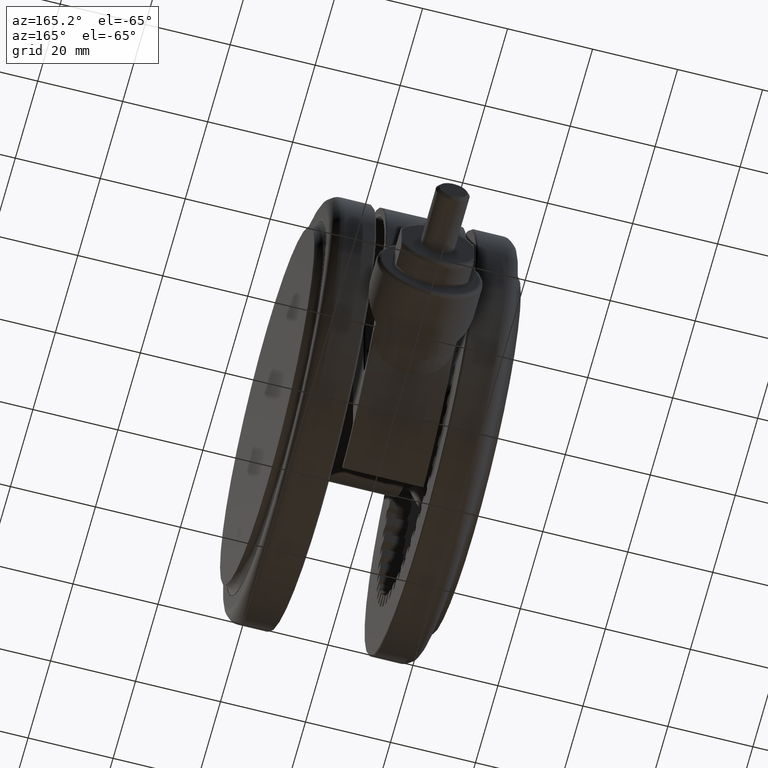
[diagram: clean part render]
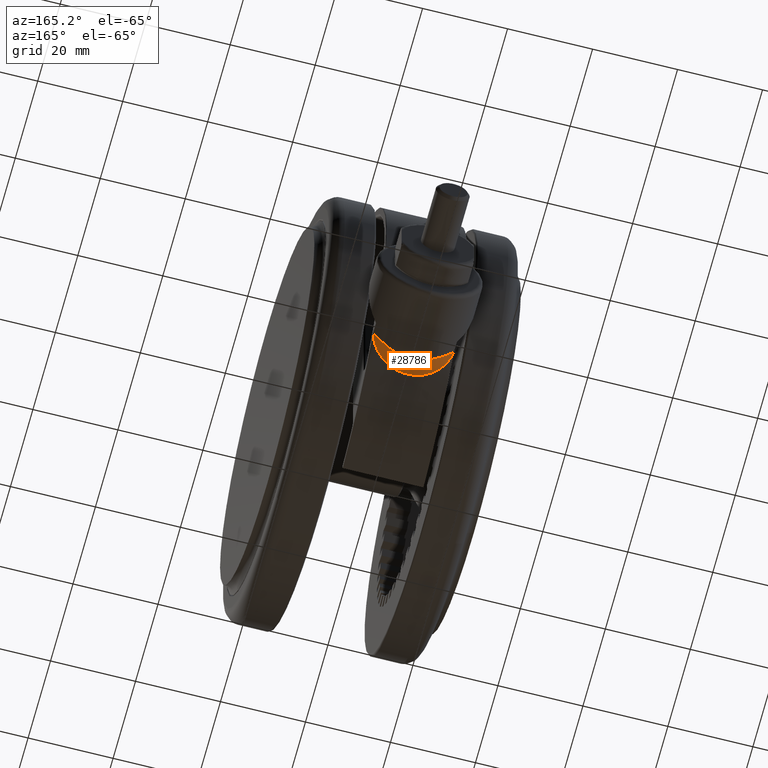
[diagram: same view with one face highlighted and labeled with its STEP entity id]
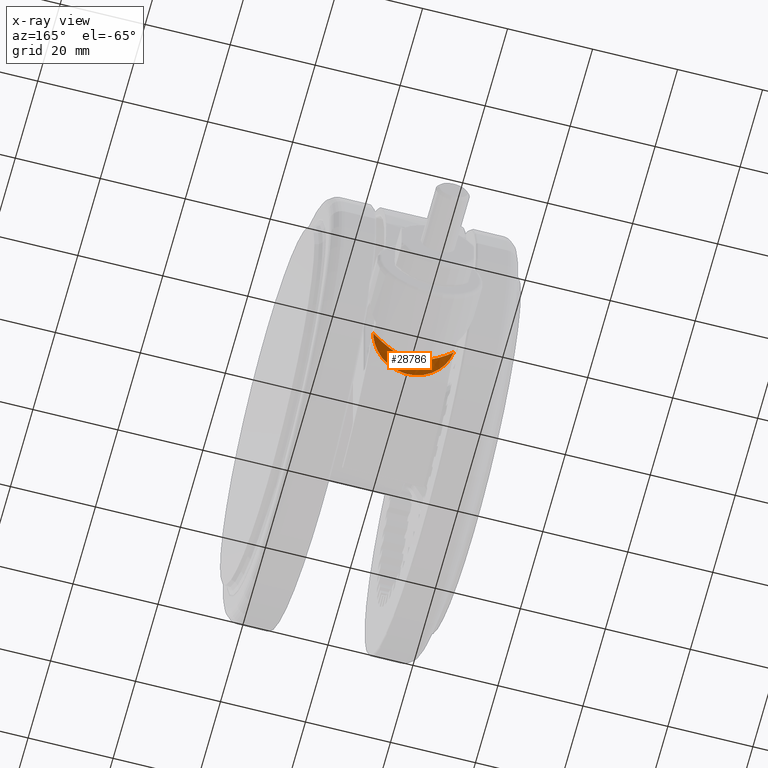
[diagram: x-ray of the same camera — body ghosted, the highlighted face saturated]
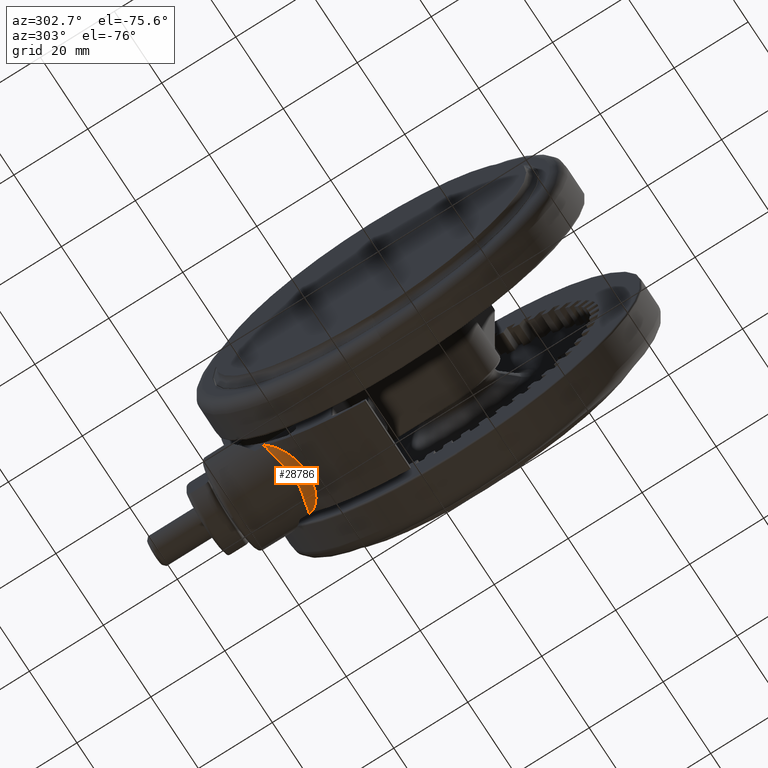
[diagram: same view with one face highlighted and labeled with its STEP entity id]
A machine part, auxiliary view. The second image highlights one B-rep face of the part: STEP entity #28786.
The next image is the same camera in x-ray: the body ghosted, the highlighted face saturated — about 0% of this face is hidden behind the body in this view.
A second angle (auxiliary view) of the same face is appended — the face is thin or edge-on in the first view.
In plain terms, the highlighted face is a freeform B-spline surface patch.
Its self-contained STEP definition (entity closure, byte-faithful):
#28 = CARTESIAN_POINT ( 'NONE',  ( 34.26113102093122400, 37.61833112222797100, -31.44312808462924000 ) ) ;
#40 = CARTESIAN_POINT ( 'NONE',  ( 32.12403840463595400, 38.31509045503450000, -14.80000000000000800 ) ) ;
#146 = CARTESIAN_POINT ( 'NONE',  ( 36.35010992757390400, 34.37936126328516200, -26.31268461614814000 ) ) ;
#250 = CARTESIAN_POINT ( 'NONE',  ( 32.91740461730739800, 38.12528708407590000, -33.12154341255964600 ) ) ;
#362 = CARTESIAN_POINT ( 'NONE',  ( 36.49977962614234900, 36.09398298328415000, -24.74066800862466000 ) ) ;
#419 = EDGE_CURVE ( 'NONE', #23087, #8622, #7089, .T. ) ;
#617 = CARTESIAN_POINT ( 'NONE',  ( 34.31274652645884500, 36.36806705901607700, -32.74709739643780900 ) ) ;
#735 = CARTESIAN_POINT ( 'NONE',  ( 36.89351901911391700, 33.74743635570671800, -29.10060216485628000 ) ) ;
#843 = CARTESIAN_POINT ( 'NONE',  ( 37.67419706141925700, 32.87332735489169300, -23.03472540845762900 ) ) ;
#951 = CARTESIAN_POINT ( 'NONE',  ( 36.99640792677027400, 33.63555748422316300, -19.75708853572382000 ) ) ;
#1056 = CARTESIAN_POINT ( 'NONE',  ( 34.76202998411583400, 35.93902763542729400, -16.23101237620990700 ) ) ;
#1875 = CARTESIAN_POINT ( 'NONE',  ( 32.12403840463595400, 38.31509045503445100, -14.80000000000000800 ) ) ;
#1971 = CARTESIAN_POINT ( 'NONE',  ( 34.16764174720548700, 37.65284456421370900, -17.02881292154144100 ) ) ;
#2076 = CARTESIAN_POINT ( 'NONE',  ( 35.35741100250899600, 37.02084243651844300, -19.07432975578160100 ) ) ;
#2180 = CARTESIAN_POINT ( 'NONE',  ( 36.23715382503068100, 36.33993012262913400, -21.75007544322314200 ) ) ;
#2323 = CARTESIAN_POINT ( 'NONE',  ( 35.89621499842026300, 36.63186333825152700, -28.13799420763969300 ) ) ;
#2417 = CARTESIAN_POINT ( 'NONE',  ( 35.28598797303126100, 37.06669203476781900, -29.67566974754688400 ) ) ;
#2422 = CARTESIAN_POINT ( 'NONE',  ( 37.54350662721949300, 33.02267842505509800, -26.69469926342491600 ) ) ;
#2525 = CARTESIAN_POINT ( 'NONE',  ( 34.07486595088106900, 37.69724034839994400, -31.69919047459953600 ) ) ;
#2535 = CARTESIAN_POINT ( 'NONE',  ( 32.74179714138836800, 37.79715078183986800, -33.27171624132719100 ) ) ;
#2648 = CARTESIAN_POINT ( 'NONE',  ( 36.49970380646760800, 34.22380826817476400, -24.81647473901135800 ) ) ;
#2752 = CARTESIAN_POINT ( 'NONE',  ( 34.38176332875099900, 37.56721705322370000, -31.27728154231266400 ) ) ;
#2860 = CARTESIAN_POINT ( 'NONE',  ( 36.41236935605259400, 36.18148907031789500, -22.58780676138174900 ) ) ;
#3125 = CARTESIAN_POINT ( 'NONE',  ( 34.99755747381399100, 35.71197130703192400, -32.16728140512346800 ) ) ;
#3224 = CARTESIAN_POINT ( 'NONE',  ( 37.10962394447585000, 33.50939683336969200, -28.47004904455612400 ) ) ;
#3337 = CARTESIAN_POINT ( 'NONE',  ( 37.63603152371469200, 32.91700591041627200, -22.66235478231261200 ) ) ;
#3463 = CARTESIAN_POINT ( 'NONE',  ( 36.59406196103343900, 34.07202084390348100, -18.79451486379904100 ) ) ;
#3566 = CARTESIAN_POINT ( 'NONE',  ( 34.49252833873738000, 36.19767272266086200, -15.99937894774339900 ) ) ;
#3874 = ORIENTED_EDGE ( 'NONE', *, *, #17502, .F. ) ;
#4488 = CARTESIAN_POINT ( 'NONE',  ( 34.32331525772909200, 37.58423699330715100, -17.25027979164446300 ) ) ;
#4523 = ORIENTED_EDGE ( 'NONE', *, *, #16413, .F. ) ;
#4599 = CARTESIAN_POINT ( 'NONE',  ( 35.45834896827953700, 36.95153514973075200, -19.30435314969649600 ) ) ;
#4706 = CARTESIAN_POINT ( 'NONE',  ( 36.24425457442555400, 36.33350434493836200, -21.78433459506822000 ) ) ;
#4730 = CARTESIAN_POINT ( 'NONE',  ( 36.41831179279795100, 36.17765676092671600, -25.98673341946097900 ) ) ;
#4831 = CARTESIAN_POINT ( 'NONE',  ( 35.87849894948297400, 36.64592584888563200, -28.19258229271266800 ) ) ;
#4839 = CARTESIAN_POINT ( 'NONE',  ( 32.12403840463595400, 38.31509045503450000, -33.80000000000001100 ) ) ;
#4933 = CARTESIAN_POINT ( 'NONE',  ( 34.95975542745568300, 37.26403204063097300, -30.31519382323877600 ) ) ;
#4939 = CARTESIAN_POINT ( 'NONE',  ( 37.72699225112035000, 32.81271180295755100, -24.91693521020435400 ) ) ;
#5049 = CARTESIAN_POINT ( 'NONE',  ( 33.98338190598304500, 37.73511266649642700, -31.82254527879713300 ) ) ;
#5055 = CARTESIAN_POINT ( 'NONE',  ( 34.08448326327211900, 36.59242965721104200, -31.71590621922821300 ) ) ;
#5153 = CARTESIAN_POINT ( 'NONE',  ( 36.37859898185988800, 34.35105924784113500, -22.29058610459592800 ) ) ;
#5260 = CARTESIAN_POINT ( 'NONE',  ( 35.07094729503325000, 37.20438601109005100, -30.12099419299385500 ) ) ;
#5378 = CARTESIAN_POINT ( 'NONE',  ( 35.79902333183770200, 36.72019316501654600, -20.08093694132109900 ) ) ;
#5524 = CARTESIAN_POINT ( 'NONE',  ( 32.91906115883919900, 37.63746394867963100, -33.55523827998324300 ) ) ;
#5632 = CARTESIAN_POINT ( 'NONE',  ( 35.58246277230635700, 35.12728478890685600, -31.48419502741859300 ) ) ;
#5749 = CARTESIAN_POINT ( 'NONE',  ( 37.23429283232788100, 33.37077632623412200, -28.04583883585296200 ) ) ;
#5861 = CARTESIAN_POINT ( 'NONE',  ( 37.58251479947406200, 32.97813730034763300, -22.22206409547560600 ) ) ;
#5959 = CARTESIAN_POINT ( 'NONE',  ( 36.33370454684151000, 34.34932155627424100, -18.28148012701952400 ) ) ;
#6070 = CARTESIAN_POINT ( 'NONE',  ( 34.38569670367532200, 36.29910101383204300, -15.91452357569802700 ) ) ;
#6813 = CARTESIAN_POINT ( 'NONE',  ( 36.50000001806535700, 36.09362725572349700, -24.29999658556106800 ) ) ;
#6993 = CARTESIAN_POINT ( 'NONE',  ( 34.59973128293498200, 37.45330876579291900, -17.67076234648680000 ) ) ;
#7089 = B_SPLINE_CURVE_WITH_KNOTS ( 'NONE', 3,
 ( #8033, #15471, #5524, #25549, #10550, #28050, #13070, #30525, #15582, #617, #18088, #3125, #20620, #5632, #23118, #8163, #25637, #10663, #28150, #13180, #30629, #15689, #735, #18188, #3224, #20719, #5749, #23229, #8254, #25757, #10768, #28253, #13275, #30749, #15790, #843, #18300, #3337, #20824, #5861, #23332, #8359, #25862, #10883, #28354, #13386, #30854, #15907, #951, #18401, #3463, #20928, #5959, #23438, #8465, #25970, #10986, #28467, #13494, #30963, #16009, #1056, #18509, #3566, #21040, #6070, #23542, #8574, #26071, #11100 ),
 .UNSPECIFIED., .F., .F.,
 ( 4, 2, 1, 1, 1, 2, 2, 2, 2, 1, 1, 2, 2, 2, 2, 1, 1, 2, 2, 2, 2, 1, 2, 2, 2, 1, 1, 2, 2, 2, 2, 1, 1, 2, 2, 2, 2, 1, 1, 2, 2, 4 ),
 ( 0.0000000000000000000, 0.06250000000000850700, 0.09375000000001301700, 0.1093750000000149900, 0.1171875000000159700, 0.1210937500000162200, 0.1250000000000164600, 0.1875000000000103500, 0.2187500000000075500, 0.2343750000000059100, 0.2421875000000051600, 0.2460937500000049700, 0.2500000000000047700, 0.3124999999999984500, 0.3437499999999954500, 0.3593749999999937300, 0.3671874999999930600, 0.3710937499999925600, 0.3749999999999920100, 0.4999999999999773500, 0.5312499999999736900, 0.5468749999999720200, 0.5546874999999712500, 0.5624999999999704700, 0.5937499999999679100, 0.6093749999999668000, 0.6171874999999660300, 0.6210937499999656900, 0.6249999999999654700, 0.6874999999999674700, 0.7187499999999684700, 0.7343749999999692500, 0.7421874999999700200, 0.7460937499999702500, 0.7499999999999703600, 0.8124999999999763500, 0.8437499999999793500, 0.8593749999999811300, 0.8671874999999822400, 0.8710937499999831200, 0.8749999999999840100, 1.000000000000000000 ),
 .UNSPECIFIED. ) ;
#7094 = CARTESIAN_POINT ( 'NONE',  ( 35.48963411192442400, 36.92991092592207300, -19.37658311766340100 ) ) ;
#7198 = CARTESIAN_POINT ( 'NONE',  ( 36.27311717477667900, 36.30730546199100000, -21.92807313298132100 ) ) ;
#7233 = CARTESIAN_POINT ( 'NONE',  ( 36.22840151674525800, 36.34954712188676500, -26.89159094638071300 ) ) ;
#7342 = CARTESIAN_POINT ( 'NONE',  ( 35.79839796583576100, 36.70857239721111400, -28.43094758828678100 ) ) ;
#7348 = CARTESIAN_POINT ( 'NONE',  ( 34.66934688114110200, 36.03122060131904900, -32.47435812443298900 ) ) ;
#7447 = CARTESIAN_POINT ( 'NONE',  ( 34.83757942184013200, 37.33240383776366400, -30.52872611963388000 ) ) ;
#7456 = CARTESIAN_POINT ( 'NONE',  ( 37.57932214696230500, 32.98440942387809800, -21.90580713615894500 ) ) ;
#7538 = CARTESIAN_POINT ( 'NONE',  ( 36.50000001806535700, 36.09362725572349700, -24.29999658556106800 ) ) ;
#7549 = CARTESIAN_POINT ( 'NONE',  ( 33.58563525851830200, 37.88900027988285000, -32.32937614987051200 ) ) ;
#7558 = CARTESIAN_POINT ( 'NONE',  ( 34.78815351317983600, 35.93242280020214700, -30.65684377935735900 ) ) ;
#7664 = CARTESIAN_POINT ( 'NONE',  ( 35.59947566346564700, 35.14474354582536400, -19.52222255057918300 ) ) ;
#7774 = CARTESIAN_POINT ( 'NONE',  ( 35.61951871395514500, 36.84454481585360200, -28.92878430881468800 ) ) ;
#7872 = CARTESIAN_POINT ( 'NONE',  ( 34.66081032718154400, 37.44346102359014600, -17.70811351085132700 ) ) ;
#8033 = CARTESIAN_POINT ( 'NONE',  ( 32.12403840463595400, 38.31509045503450000, -33.80000000000001100 ) ) ;
#8163 = CARTESIAN_POINT ( 'NONE',  ( 35.88639470079879600, 34.81640338780152200, -31.06024271980778200 ) ) ;
#8254 = CARTESIAN_POINT ( 'NONE',  ( 37.27868678258919700, 33.32115974008784300, -27.87941658467048400 ) ) ;
#8300 = FACE_OUTER_BOUND ( 'NONE', #15724, .T. ) ;
#8359 = CARTESIAN_POINT ( 'NONE',  ( 37.45842529910191800, 33.11899733783361900, -21.50681829035518800 ) ) ;
#8465 = CARTESIAN_POINT ( 'NONE',  ( 36.17699705539703100, 34.51413370293398200, -18.00630928014398100 ) ) ;
#8574 = CARTESIAN_POINT ( 'NONE',  ( 33.67350113742060100, 36.97218770086729500, -15.36742604078901000 ) ) ;
#8622 = VERTEX_POINT ( 'NONE', #15775 ) ;
#9285 = CARTESIAN_POINT ( 'NONE',  ( 32.83125385824249100, 38.14565107068398900, -15.40478373741594700 ) ) ;
#9479 = CARTESIAN_POINT ( 'NONE',  ( 34.86014351235378700, 37.31630280300002100, -18.11069175478669300 ) ) ;
#9593 = CARTESIAN_POINT ( 'NONE',  ( 35.61461062774420600, 36.84189128903782500, -19.67647250788600400 ) ) ;
#9709 = CARTESIAN_POINT ( 'NONE',  ( 36.37319197468891500, 36.21531074134630000, -22.50033337221762200 ) ) ;
#9739 = CARTESIAN_POINT ( 'NONE',  ( 36.21568386763834700, 36.36102853541709800, -26.95105854245215600 ) ) ;
#9844 = CARTESIAN_POINT ( 'NONE',  ( 35.63303338329343000, 36.83201838834877200, -28.87917505928111300 ) ) ;
#9852 = CARTESIAN_POINT ( 'NONE',  ( 35.58109633653854300, 35.13063693977344600, -31.50272081236212800 ) ) ;
#9956 = CARTESIAN_POINT ( 'NONE',  ( 34.80619527043756300, 37.34976343444900200, -30.58309302511790400 ) ) ;
#9963 = CARTESIAN_POINT ( 'NONE',  ( 36.61704633647439500, 34.05472666572010400, -18.73239537319346900 ) ) ;
#10068 = CARTESIAN_POINT ( 'NONE',  ( 32.84611438618557600, 38.12962498299407300, -33.14508284543296700 ) ) ;
#10074 = CARTESIAN_POINT ( 'NONE',  ( 35.39922863813033900, 35.34000757902796900, -29.48206776920396900 ) ) ;
#10179 = CARTESIAN_POINT ( 'NONE',  ( 34.34436447098509100, 36.35558612683163200, -17.21275494055692700 ) ) ;
#10298 = CARTESIAN_POINT ( 'NONE',  ( 36.03308066160889900, 36.52274414425384900, -27.71152964968322200 ) ) ;
#10404 = CARTESIAN_POINT ( 'NONE',  ( 32.91846472706544100, 38.12475651041005200, -15.47936315295480700 ) ) ;
#10550 = CARTESIAN_POINT ( 'NONE',  ( 33.73991292827052700, 36.90143508624567700, -33.14026829706006100 ) ) ;
#10663 = CARTESIAN_POINT ( 'NONE',  ( 36.04674763137578700, 34.65014434421857500, -30.81094728902933600 ) ) ;
#10768 = CARTESIAN_POINT ( 'NONE',  ( 37.58501714429105800, 32.97809629345242400, -26.68190859808844100 ) ) ;
#10883 = CARTESIAN_POINT ( 'NONE',  ( 37.35927654058051000, 33.23079222800404900, -21.04918661681717800 ) ) ;
#10986 = CARTESIAN_POINT ( 'NONE',  ( 36.12770660375936400, 34.56572447908637700, -17.92322606596894400 ) ) ;
#11100 = CARTESIAN_POINT ( 'NONE',  ( 32.12403840463595400, 38.31509045503445100, -14.80000000000000800 ) ) ;
#11483 = B_SPLINE_CURVE_WITH_KNOTS ( 'NONE', 3,
 ( #6813, #29296, #4730, #22210, #7233, #24727, #9739, #27223, #12246, #29715, #14768, #32236, #17284, #2323, #19779, #4831, #22306, #7342, #24824, #9844, #27351, #12351, #29818, #14869, #32349, #17384, #2417, #19896, #4933, #22406, #7447, #24933, #9956, #27445, #12473, #29919, #14981, #28, #17498, #2525, #20002, #5049, #22515, #7549, #25044, #10068, #27552, #12575 ),
 .UNSPECIFIED., .F., .F.,
 ( 4, 2, 2, 1, 1, 1, 2, 2, 2, 1, 1, 1, 2, 2, 2, 1, 1, 1, 1, 2, 2, 1, 1, 1, 2, 2, 2, 1, 1, 1, 2, 4 ),
 ( 0.4997022812484689400, 0.6247767109363243600, 0.6267309989001974600, 0.6286852868640705500, 0.6325938627918172900, 0.6404110146473110900, 0.6560453183582983800, 0.6873139257802726200, 0.6892682137441461500, 0.6912225017080195800, 0.6951310776357665400, 0.7029482294912603500, 0.7185825332022481900, 0.7498511406242236400, 0.7518054285880972900, 0.7537597165519709400, 0.7576682924797177900, 0.7654854443352121500, 0.7811197480462001000, 0.8123883554681763400, 0.8143426434320497600, 0.8162969313959231900, 0.8202055073236700400, 0.8280226591791632900, 0.8436569628901502400, 0.8749255703121239200, 0.8788341462398701100, 0.8827427221676161800, 0.8905598740231084300, 0.9061941777340931600, 0.9374627851560622900, 1.000000000000000000 ),
 .UNSPECIFIED. ) ;
#11914 = CARTESIAN_POINT ( 'NONE',  ( 33.51028970744835100, 37.93220448744399000, -16.12263061561724300 ) ) ;
#12014 = CARTESIAN_POINT ( 'NONE',  ( 34.87962305964004600, 37.30564295848373000, -18.14500274588717900 ) ) ;
#12118 = CARTESIAN_POINT ( 'NONE',  ( 35.80168147988111800, 36.70355044283511600, -20.17382168434075500 ) ) ;
#12213 = CARTESIAN_POINT ( 'NONE',  ( 36.47957591454797200, 36.11417289996642000, -23.46611478613859000 ) ) ;
#12246 = CARTESIAN_POINT ( 'NONE',  ( 36.15805373235137000, 36.41258714090911800, -27.20685049241592100 ) ) ;
#12351 = CARTESIAN_POINT ( 'NONE',  ( 35.43992505489750800, 36.96565723448504300, -29.33769371529816500 ) ) ;
#12358 = CARTESIAN_POINT ( 'NONE',  ( 36.36043241358020600, 34.32274062846539700, -30.29595018659630800 ) ) ;
#12473 = CARTESIAN_POINT ( 'NONE',  ( 34.66743719506526800, 37.42394761068105400, -30.81731373420998600 ) ) ;
#12480 = CARTESIAN_POINT ( 'NONE',  ( 35.01279839000770300, 35.70650422569295300, -16.39583582207231800 ) ) ;
#12575 = CARTESIAN_POINT ( 'NONE',  ( 32.12403840463595400, 38.31509045503450000, -33.80000000000001100 ) ) ;
#12585 = CARTESIAN_POINT ( 'NONE',  ( 35.89556917485985100, 34.84482114249387800, -28.20029443363994300 ) ) ;
#12699 = CARTESIAN_POINT ( 'NONE',  ( 32.74271661649851200, 37.79637987802923500, -15.32907005831086700 ) ) ;
#12810 = CARTESIAN_POINT ( 'NONE',  ( 36.32129708903960400, 36.26548179499374700, -26.44982729102327600 ) ) ;
#13070 = CARTESIAN_POINT ( 'NONE',  ( 34.18871064047896600, 36.48476154391279600, -32.83915778884531300 ) ) ;
#13180 = CARTESIAN_POINT ( 'NONE',  ( 36.09326724600048700, 34.60168511526683900, -30.73579949498948200 ) ) ;
#13275 = CARTESIAN_POINT ( 'NONE',  ( 37.72742056007388100, 32.81221933876854300, -24.00770164411129000 ) ) ;
#13386 = CARTESIAN_POINT ( 'NONE',  ( 37.31689872523966800, 33.27835986008985000, -20.87483004962699000 ) ) ;
#13494 = CARTESIAN_POINT ( 'NONE',  ( 35.59718382081841500, 35.11429071728033300, -17.12017626975689000 ) ) ;
#14428 = CARTESIAN_POINT ( 'NONE',  ( 34.12394766109386500, 37.67156191374105800, -16.96817061705037200 ) ) ;
#14518 = CARTESIAN_POINT ( 'NONE',  ( 34.94685685018090000, 37.26844631393411300, -18.26496723256881800 ) ) ;
#14625 = CARTESIAN_POINT ( 'NONE',  ( 36.06573623713082800, 36.49300108588882100, -21.00542363732815000 ) ) ;
#14739 = CARTESIAN_POINT ( 'NONE',  ( 36.50000001806535700, 36.09362725572349700, -24.29999658556106800 ) ) ;
#14768 = CARTESIAN_POINT ( 'NONE',  ( 36.03861309029161200, 36.51591747484521700, -27.67165940520181900 ) ) ;
#14869 = CARTESIAN_POINT ( 'NONE',  ( 35.42372825137858400, 36.97652211680770800, -29.37431014495594900 ) ) ;
#14880 = CARTESIAN_POINT ( 'NONE',  ( 36.98341913370889200, 33.64985470850115200, -28.88246211112868900 ) ) ;
#14981 = CARTESIAN_POINT ( 'NONE',  ( 34.39650944352334200, 37.55682584861622100, -31.24363407806773200 ) ) ;
#14989 = CARTESIAN_POINT ( 'NONE',  ( 32.92274747709100100, 37.64543887355674900, -15.00357939401489700 ) ) ;
#15094 = CARTESIAN_POINT ( 'NONE',  ( 36.26257030158093600, 34.47001485367971400, -26.79698749842321700 ) ) ;
#15212 = CARTESIAN_POINT ( 'NONE',  ( 32.12403840463595400, 38.31509045503450000, -33.80000000000001100 ) ) ;
#15219 = CARTESIAN_POINT ( 'NONE',  ( 32.12403840463595400, 38.31509045503450000, -33.80000000000001100 ) ) ;
#15316 = CARTESIAN_POINT ( 'NONE',  ( 36.47679525740325300, 36.11673357199304500, -25.17381985722370500 ) ) ;
#15471 = CARTESIAN_POINT ( 'NONE',  ( 32.53170146418551700, 37.97329865379914100, -33.69623421304554300 ) ) ;
#15582 = CARTESIAN_POINT ( 'NONE',  ( 34.29288990463558000, 36.38679042535780900, -32.76208389114430700 ) ) ;
#15689 = CARTESIAN_POINT ( 'NONE',  ( 36.59771754745315800, 34.06892858752119900, -29.82475463302119300 ) ) ;
#15724 = EDGE_LOOP ( 'NONE', ( #20985, #3874, #4523 ) ) ;
#15775 = CARTESIAN_POINT ( 'NONE',  ( 32.12403840463595400, 38.31509045503445100, -14.80000000000000800 ) ) ;
#15790 = CARTESIAN_POINT ( 'NONE',  ( 37.69123459779177700, 32.85378250809321100, -23.25875986143018500 ) ) ;
#15907 = CARTESIAN_POINT ( 'NONE',  ( 37.16268891530255300, 33.45110870720792200, -20.26802367117650400 ) ) ;
#16009 = CARTESIAN_POINT ( 'NONE',  ( 35.00197835032136600, 35.70589945023003500, -16.45673910144654800 ) ) ;
#16413 = EDGE_CURVE ( 'NONE', #8622, #23489, #26503, .T. ) ;
#16927 = CARTESIAN_POINT ( 'NONE',  ( 34.14210928010621900, 37.66381044730152900, -16.99329829154412200 ) ) ;
#17034 = CARTESIAN_POINT ( 'NONE',  ( 35.21677137472134000, 37.11142425517876100, -18.77561857905072500 ) ) ;
#17151 = CARTESIAN_POINT ( 'NONE',  ( 36.23549645471085500, 36.34142888843050700, -21.74213810170258700 ) ) ;
#17284 = CARTESIAN_POINT ( 'NONE',  ( 35.89892968038697100, 36.62970362570370500, -28.12958129000052300 ) ) ;
#17288 = CARTESIAN_POINT ( 'NONE',  ( 32.92166222279080000, 37.64634876964220200, -33.59697433641422000 ) ) ;
#17384 = CARTESIAN_POINT ( 'NONE',  ( 35.36717482719096500, 37.01403410382445000, -29.50025706937671200 ) ) ;
#17392 = CARTESIAN_POINT ( 'NONE',  ( 37.43618242095029600, 33.14478191163090100, -27.26398927128392200 ) ) ;
#17498 = CARTESIAN_POINT ( 'NONE',  ( 34.09237753910360900, 37.68988539548031000, -31.67529203615310300 ) ) ;
#17502 = EDGE_CURVE ( 'NONE', #23489, #23087, #11483, .T. ) ;
#17505 = CARTESIAN_POINT ( 'NONE',  ( 32.12403840463591100, 38.31509045503447200, -33.79999999999999700 ) ) ;
#17612 = CARTESIAN_POINT ( 'NONE',  ( 36.46856530793935700, 34.25636351355731800, -25.32458838649882800 ) ) ;
#17719 = CARTESIAN_POINT ( 'NONE',  ( 33.56664285894665100, 37.91273334638410100, -32.39834640830759600 ) ) ;
#17829 = CARTESIAN_POINT ( 'NONE',  ( 36.50043599079795300, 36.09292643029620300, -23.43755230665498200 ) ) ;
#18088 = CARTESIAN_POINT ( 'NONE',  ( 34.67847468078797800, 36.02259843665415700, -32.46738158164354400 ) ) ;
#18188 = CARTESIAN_POINT ( 'NONE',  ( 36.98444995232171100, 33.64767337381374500, -28.85244482626061200 ) ) ;
#18300 = CARTESIAN_POINT ( 'NONE',  ( 37.65198884829325000, 32.89875199347876800, -22.81123102367819700 ) ) ;
#18401 = CARTESIAN_POINT ( 'NONE',  ( 36.70046858691914300, 33.95727959054109800, -19.03021689853185800 ) ) ;
#18509 = CARTESIAN_POINT ( 'NONE',  ( 34.63963226216026900, 36.05716634665797900, -16.12144361543154500 ) ) ;
#19438 = CARTESIAN_POINT ( 'NONE',  ( 34.21907164050809100, 37.63051104484094400, -17.10103320994397100 ) ) ;
#19531 = CARTESIAN_POINT ( 'NONE',  ( 35.45137718920965100, 36.95633427270468700, -19.28839850064429500 ) ) ;
#19637 = CARTESIAN_POINT ( 'NONE',  ( 36.24000156349689700, 36.33735371592847900, -21.76378023264734600 ) ) ;
#19779 = CARTESIAN_POINT ( 'NONE',  ( 35.88917128239229700, 36.63746066680122500, -28.15975867697111900 ) ) ;
#19896 = CARTESIAN_POINT ( 'NONE',  ( 35.11666137713722700, 37.17249885011512600, -30.02322095952151000 ) ) ;
#19904 = CARTESIAN_POINT ( 'NONE',  ( 37.68892080385724300, 32.85661925507940100, -25.52311673937988000 ) ) ;
#20002 = CARTESIAN_POINT ( 'NONE',  ( 34.03837811871009200, 37.71242924569736500, -31.74861788209258500 ) ) ;
#20007 = CARTESIAN_POINT ( 'NONE',  ( 33.31013225459416600, 37.29730577675149300, -32.69042207014996400 ) ) ;
#20123 = CARTESIAN_POINT ( 'NONE',  ( 36.50058598413022500, 34.22286650298857300, -23.28920437260382000 ) ) ;
#20228 = CARTESIAN_POINT ( 'NONE',  ( 34.62683780853610200, 37.44778576250875100, -30.89698155184169800 ) ) ;
#20344 = CARTESIAN_POINT ( 'NONE',  ( 36.05812889911180000, 36.50181562763594900, -20.89411594885433800 ) ) ;
#20620 = CARTESIAN_POINT ( 'NONE',  ( 35.44067592291738600, 35.27041211934644600, -31.66187379056688300 ) ) ;
#20719 = CARTESIAN_POINT ( 'NONE',  ( 37.16940470234046500, 33.44309982805506100, -28.27631121025110200 ) ) ;
#20824 = CARTESIAN_POINT ( 'NONE',  ( 37.62730254867106100, 32.92698418947752300, -22.58655718072868600 ) ) ;
#20928 = CARTESIAN_POINT ( 'NONE',  ( 36.42248523555941400, 34.25506623937974400, -18.45084457819656300 ) ) ;
#20985 = ORIENTED_EDGE ( 'NONE', *, *, #419, .F. ) ;
#21040 = CARTESIAN_POINT ( 'NONE',  ( 34.42855383075278300, 36.25845492202457600, -15.94830099442417600 ) ) ;
#21965 = CARTESIAN_POINT ( 'NONE',  ( 34.41477385333261900, 37.54181864149825300, -17.38658844214839800 ) ) ;
#22075 = CARTESIAN_POINT ( 'NONE',  ( 35.47091343021695300, 36.94286382234541600, -19.33327133736010600 ) ) ;
#22088 =( BOUNDED_SURFACE ( )  B_SPLINE_SURFACE ( 2, 3, ( 
 ( #4839, #17288, #22316, #7348, #24830, #9852, #27355, #12358, #29826, #14880, #32356, #17392, #2422, #19904, #4939, #22414, #7456, #24942, #9963, #27452, #12480, #29927, #14989, #40 ),
 ( #17505, #2535, #20007, #5055, #22524, #7558, #25054, #10074, #27560, #12585, #30042, #15094, #146, #17612, #2648, #20123, #5153, #22637, #7664, #25164, #10179, #27679, #12699, #30140 ),
 ( #15212, #250, #17719, #2752, #20228, #5260, #22745, #7774, #25274, #10298, #27797, #12810, #30254, #15316, #362, #17829, #2860, #20344, #5378, #22857, #7872, #25395, #10404, #27900 ) ),
 .UNSPECIFIED., .F., .F., .F. ) 
 B_SPLINE_SURFACE_WITH_KNOTS ( ( 3, 3 ),
 ( 4, 2, 2, 2, 2, 2, 2, 2, 2, 2, 2, 4 ),
 ( 0.0000000000000000000, 1.000000000000000000 ),
 ( 0.0000000000000000000, 0.002910886117482075000, 0.004366329176223114600, 0.005821772234964149900, 0.007277215293705189600, 0.008732658352446231000, 0.01018810141118726100, 0.01164354446992830000, 0.01455443058741037900, 0.01746531670489245200, 0.02037620282237455000, 0.02328708893985660000 ),
 .UNSPECIFIED. ) 
 GEOMETRIC_REPRESENTATION_ITEM ( )  RATIONAL_B_SPLINE_SURFACE ( (
 ( 1.000000000000000000, 1.000000000000000000, 1.000000000000000000, 1.000000000000000000, 1.000000000000000000, 1.000000000000000000, 1.000000000000000000, 1.000000000000000000, 1.000000000000000000, 1.000000000000000000, 1.000000000000000000, 1.000000000000000000, 1.000000000000000000, 1.000000000000000000, 1.000000000000000000, 1.000000000000000000, 1.000000000000000000, 1.000000000000000000, 1.000000000000000000, 1.000000000000000000, 1.000000000000000000, 1.000000000000000000, 1.000000000000000000, 1.000000000000000000),
 ( 0.8418916422966860000, 0.8570734120095450100, 0.8703353177241299800, 0.8876393394011290500, 0.8929770659336349100, 0.9028314442063309900, 0.9073492672212120100, 0.9154090577498089600, 0.9189779975322630600, 0.9252072574556999800, 0.9278809530471759900, 0.9322041489067389700, 0.9338395159535939300, 0.9360492422161689200, 0.9366233347750039200, 0.9366383695769610100, 0.9344183675432130600, 0.9257898320593279700, 0.9195433855217219900, 0.9033177914612959800, 0.8935623208423110200, 0.8704889904661880000, 0.8570972105120691100, 0.8418916422966860000),
 ( 1.000000000000000000, 1.000000000000000000, 1.000000000000000000, 1.000000000000000000, 1.000000000000000000, 1.000000000000000000, 1.000000000000000000, 1.000000000000000000, 1.000000000000000000, 1.000000000000000000, 1.000000000000000000, 1.000000000000000000, 1.000000000000000000, 1.000000000000000000, 1.000000000000000000, 1.000000000000000000, 1.000000000000000000, 1.000000000000000000, 1.000000000000000000, 1.000000000000000000, 1.000000000000000000, 1.000000000000000000, 1.000000000000000000, 1.000000000000000000) ) ) 
 REPRESENTATION_ITEM ( '' )  SURFACE ( )  );
#22181 = CARTESIAN_POINT ( 'NONE',  ( 36.25404827326705300, 36.32462915272095200, -21.83227477241775800 ) ) ;
#22210 = CARTESIAN_POINT ( 'NONE',  ( 36.23063194157538900, 36.34753037272382400, -26.88105403869915100 ) ) ;
#22306 = CARTESIAN_POINT ( 'NONE',  ( 35.85283871980131200, 36.66616226523518700, -28.27040462708760800 ) ) ;
#22316 = CARTESIAN_POINT ( 'NONE',  ( 33.66408607962280500, 36.98079492340534800, -33.24321432607195000 ) ) ;
#22406 = CARTESIAN_POINT ( 'NONE',  ( 34.84321218121825600, 37.32926548909538400, -30.51891792850822000 ) ) ;
#22414 = CARTESIAN_POINT ( 'NONE',  ( 37.72782762531899400, 32.81175130032534800, -23.09257323305728000 ) ) ;
#22515 = CARTESIAN_POINT ( 'NONE',  ( 33.85321846210314300, 37.78734117233130300, -31.99353385111925600 ) ) ;
#22524 = CARTESIAN_POINT ( 'NONE',  ( 34.32820012965455400, 36.36630205246957100, -31.37659994023209000 ) ) ;
#22637 = CARTESIAN_POINT ( 'NONE',  ( 35.92461712610433700, 34.81611768653280600, -20.39279422286825700 ) ) ;
#22745 = CARTESIAN_POINT ( 'NONE',  ( 35.27000021431069900, 37.08024586471220400, -29.72456952125417800 ) ) ;
#22857 = CARTESIAN_POINT ( 'NONE',  ( 35.09520465022585300, 37.19832824345365200, -18.47643764968856000 ) ) ;
#23087 = VERTEX_POINT ( 'NONE', #15219 ) ;
#23118 = CARTESIAN_POINT ( 'NONE',  ( 35.78652116575482700, 34.91896835888577800, -31.20386254525206800 ) ) ;
#23229 = CARTESIAN_POINT ( 'NONE',  ( 37.26106686952010700, 33.34086187254300200, -27.94611248231610600 ) ) ;
#23332 = CARTESIAN_POINT ( 'NONE',  ( 37.53810011567075800, 33.02873721342054800, -21.93390471861958300 ) ) ;
#23438 = CARTESIAN_POINT ( 'NONE',  ( 36.22481259833311600, 34.46399058006326800, -18.08821197765529500 ) ) ;
#23489 = VERTEX_POINT ( 'NONE', #7538 ) ;
#23542 = CARTESIAN_POINT ( 'NONE',  ( 34.36343508477814600, 36.32017561434545900, -15.89721210537101500 ) ) ;
#24471 = CARTESIAN_POINT ( 'NONE',  ( 34.72578075680198100, 37.38940461920597600, -17.87562727322982100 ) ) ;
#24587 = CARTESIAN_POINT ( 'NONE',  ( 35.53244071496696000, 36.90006616351703900, -19.47717980003957200 ) ) ;
#24697 = CARTESIAN_POINT ( 'NONE',  ( 36.30919287766943900, 36.27436485535036300, -22.11932611970626900 ) ) ;
#24727 = CARTESIAN_POINT ( 'NONE',  ( 36.22334612407755800, 36.35411392151770100, -26.91533111079621700 ) ) ;
#24824 = CARTESIAN_POINT ( 'NONE',  ( 35.74607930704799200, 36.74824502337941100, -28.57682106156307700 ) ) ;
#24830 = CARTESIAN_POINT ( 'NONE',  ( 34.98648690088710800, 35.72284706792375200, -32.17832863730605900 ) ) ;
#24933 = CARTESIAN_POINT ( 'NONE',  ( 34.82507840063518500, 37.33933783960262800, -30.55042673888779000 ) ) ;
#24942 = CARTESIAN_POINT ( 'NONE',  ( 37.01941153229210400, 33.61160347067649900, -19.70481856508210000 ) ) ;
#25044 = CARTESIAN_POINT ( 'NONE',  ( 33.34418376832847000, 37.97134025072432500, -32.60638533134118000 ) ) ;
#25054 = CARTESIAN_POINT ( 'NONE',  ( 35.00522410131982600, 35.72389488592769900, -30.27522735907798400 ) ) ;
#25164 = CARTESIAN_POINT ( 'NONE',  ( 34.80540810995822900, 35.91864659481292000, -17.92145593502596100 ) ) ;
#25274 = CARTESIAN_POINT ( 'NONE',  ( 35.77125076591605100, 36.73149997768064900, -28.52743659507456500 ) ) ;
#25395 = CARTESIAN_POINT ( 'NONE',  ( 33.57425050388344800, 37.90511995948760000, -16.21052711192820400 ) ) ;
#25549 = CARTESIAN_POINT ( 'NONE',  ( 33.47112494289950000, 37.14491371740820100, -33.28789916122808300 ) ) ;
#25637 = CARTESIAN_POINT ( 'NONE',  ( 35.99919553597424500, 34.69959086388171700, -30.88664248415763700 ) ) ;
#25757 = CARTESIAN_POINT ( 'NONE',  ( 37.28692987240628300, 33.31193546800764700, -27.84773115021839700 ) ) ;
#25862 = CARTESIAN_POINT ( 'NONE',  ( 37.41532364989380700, 33.16771651198349200, -21.29456323547790900 ) ) ;
#25970 = CARTESIAN_POINT ( 'NONE',  ( 36.14486403006561200, 34.54778351006444100, -17.95191337277179500 ) ) ;
#26071 = CARTESIAN_POINT ( 'NONE',  ( 32.93632475846038700, 37.63405544465285100, -15.00704004672171600 ) ) ;
#26503 = B_SPLINE_CURVE_WITH_KNOTS ( 'NONE', 3,
 ( #1875, #9285, #11914, #29362, #14428, #31877, #16927, #1971, #19438, #4488, #21965, #6993, #24471, #9479, #26978, #12014, #29468, #14518, #31987, #17034, #2076, #19531, #4599, #22075, #7094, #24587, #9593, #27085, #12118, #29578, #14625, #32103, #17151, #2180, #19637, #4706, #22181, #7198, #24697, #9709, #27193, #12213, #29681, #14739 ),
 .UNSPECIFIED., .F., .F.,
 ( 4, 2, 2, 1, 1, 1, 1, 2, 2, 2, 1, 1, 1, 1, 2, 2, 1, 1, 1, 2, 2, 2, 2, 1, 1, 1, 1, 1, 2, 4 ),
 ( 0.0000000000000000000, 0.1249255703121935200, 0.1259015513302573800, 0.1268775323483212800, 0.1288294943844486600, 0.1327334184567026700, 0.1405412666012101100, 0.1561569628902249600, 0.1873883554682549700, 0.1893403175043815200, 0.1912922795405080600, 0.1951962036127611900, 0.2030040517572678500, 0.2186197480462811500, 0.2498511406243077400, 0.2518031026604347100, 0.2537550646965616200, 0.2576589887688153200, 0.2654668369133222900, 0.2810825332023360600, 0.3123139257803631600, 0.3747767109364176800, 0.3757526919544809100, 0.3767286729725440900, 0.3786806350086699400, 0.3825845590809213700, 0.3903924072254242300, 0.4060081035144303400, 0.4372394960924431700, 0.4997022812484689400 ),
 .UNSPECIFIED. ) ;
#26978 = CARTESIAN_POINT ( 'NONE',  ( 34.86605375876300200, 37.31307439966559500, -18.12107899146945300 ) ) ;
#27085 = CARTESIAN_POINT ( 'NONE',  ( 35.67933347742766900, 36.79462365433719400, -19.84388870938642700 ) ) ;
#27193 = CARTESIAN_POINT ( 'NONE',  ( 36.41440691819870100, 36.17639652810371600, -22.82392555790842800 ) ) ;
#27223 = CARTESIAN_POINT ( 'NONE',  ( 36.19724345810797000, 36.37761353568657800, -27.03524008814665100 ) ) ;
#27351 = CARTESIAN_POINT ( 'NONE',  ( 35.54647348911002100, 36.89377144850543300, -29.09491575076123500 ) ) ;
#27355 = CARTESIAN_POINT ( 'NONE',  ( 35.85864279916349800, 34.84665416009755000, -31.12207594690960400 ) ) ;
#27445 = CARTESIAN_POINT ( 'NONE',  ( 34.76120495777553300, 37.37426196703922400, -30.66011556383605800 ) ) ;
#27452 = CARTESIAN_POINT ( 'NONE',  ( 35.60764669468360200, 35.10880213779745400, -17.06325723051177700 ) ) ;
#27552 = CARTESIAN_POINT ( 'NONE',  ( 32.49383438787705100, 38.22662119195638300, -33.48376455055466000 ) ) ;
#27560 = CARTESIAN_POINT ( 'NONE',  ( 35.57831253036212600, 35.16264297112025600, -29.06800148836990200 ) ) ;
#27679 = CARTESIAN_POINT ( 'NONE',  ( 33.31827743322988100, 37.29003772161654200, -15.91850003289971700 ) ) ;
#27797 = CARTESIAN_POINT ( 'NONE',  ( 36.14376018732224300, 36.42614527361010300, -27.29419569340601700 ) ) ;
#27900 = CARTESIAN_POINT ( 'NONE',  ( 32.12403840463595400, 38.31509045503450000, -14.80000000000000800 ) ) ;
#28050 = CARTESIAN_POINT ( 'NONE',  ( 34.04114394597100800, 36.62272535006732000, -32.94360000548079600 ) ) ;
#28150 = CARTESIAN_POINT ( 'NONE',  ( 36.07827384832427200, 34.61731754484448200, -30.76019602691370700 ) ) ;
#28253 = CARTESIAN_POINT ( 'NONE',  ( 37.72667130563738200, 32.81308082199323900, -25.51326617933148800 ) ) ;
#28354 = CARTESIAN_POINT ( 'NONE',  ( 37.33401568358185300, 33.25915570764683300, -20.94450826854032500 ) ) ;
#28467 = CARTESIAN_POINT ( 'NONE',  ( 35.86658510469239800, 34.83840316451788500, -17.49143007599163400 ) ) ;
#28786 = ADVANCED_FACE ( 'NONE', ( #8300 ), #22088, .T. ) ;
#29296 = CARTESIAN_POINT ( 'NONE',  ( 36.50000022559346700, 36.09388832022371200, -25.12587872256693800 ) ) ;
#29362 = CARTESIAN_POINT ( 'NONE',  ( 34.12118266671574700, 37.67273934764164500, -16.96435235114065800 ) ) ;
#29468 = CARTESIAN_POINT ( 'NONE',  ( 34.89991779094894800, 37.29449198006831500, -18.18092196628997600 ) ) ;
#29578 = CARTESIAN_POINT ( 'NONE',  ( 35.87378657353166700, 36.64745104569933400, -20.38723262963522500 ) ) ;
#29681 = CARTESIAN_POINT ( 'NONE',  ( 36.49999988733682000, 36.09349687900536500, -23.88754698561645300 ) ) ;
#29715 = CARTESIAN_POINT ( 'NONE',  ( 36.12029095828564400, 36.44565641055746100, -27.35943134538201000 ) ) ;
#29818 = CARTESIAN_POINT ( 'NONE',  ( 35.43490940000326400, 36.96902877866462900, -29.34906304399783400 ) ) ;
#29826 = CARTESIAN_POINT ( 'NONE',  ( 36.58613579060080000, 34.08138319720225700, -29.84812007687317600 ) ) ;
#29919 = CARTESIAN_POINT ( 'NONE',  ( 34.58033566525877200, 37.46771572545074500, -30.95727894227788100 ) ) ;
#29927 = CARTESIAN_POINT ( 'NONE',  ( 33.67225760092104300, 36.97336288702945200, -15.36648014233141700 ) ) ;
#30042 = CARTESIAN_POINT ( 'NONE',  ( 36.03509612087075500, 34.70300020196173600, -27.74283297009124300 ) ) ;
#30140 = CARTESIAN_POINT ( 'NONE',  ( 32.12403840463597500, 38.31509045503447200, -14.80000000000000600 ) ) ;
#30254 = CARTESIAN_POINT ( 'NONE',  ( 36.38754879989575400, 36.20252279753180600, -26.02702512090586900 ) ) ;
#30525 = CARTESIAN_POINT ( 'NONE',  ( 34.25130445586921700, 36.42593799124081500, -32.79308796653460000 ) ) ;
#30629 = CARTESIAN_POINT ( 'NONE',  ( 36.36986337231447700, 34.31289385851398100, -30.28043021496844000 ) ) ;
#30749 = CARTESIAN_POINT ( 'NONE',  ( 37.71843996565867500, 32.82255396730225500, -23.70754885829950400 ) ) ;
#30854 = CARTESIAN_POINT ( 'NONE',  ( 37.30790920989741000, 33.28843755603168100, -20.83889342433576900 ) ) ;
#30963 = CARTESIAN_POINT ( 'NONE',  ( 35.15548171894985800, 35.55468087673249000, -16.61600918984420600 ) ) ;
#31877 = CARTESIAN_POINT ( 'NONE',  ( 34.13120689587360300, 37.66846706649663900, -16.97820478446339700 ) ) ;
#31987 = CARTESIAN_POINT ( 'NONE',  ( 35.03906758270137800, 37.21624811567284000, -18.43398178495470700 ) ) ;
#32103 = CARTESIAN_POINT ( 'NONE',  ( 36.16130169531754000, 36.40849875481087100, -21.38801587333360700 ) ) ;
#32236 = CARTESIAN_POINT ( 'NONE',  ( 35.97596419938559400, 36.56825488435848100, -27.88924821476204800 ) ) ;
#32349 = CARTESIAN_POINT ( 'NONE',  ( 35.40689378702985100, 36.98776650753533300, -29.41215300998629800 ) ) ;
#32356 = CARTESIAN_POINT ( 'NONE',  ( 37.15574321912810500, 33.45885634713864900, -28.36081711690257700 ) ) ;